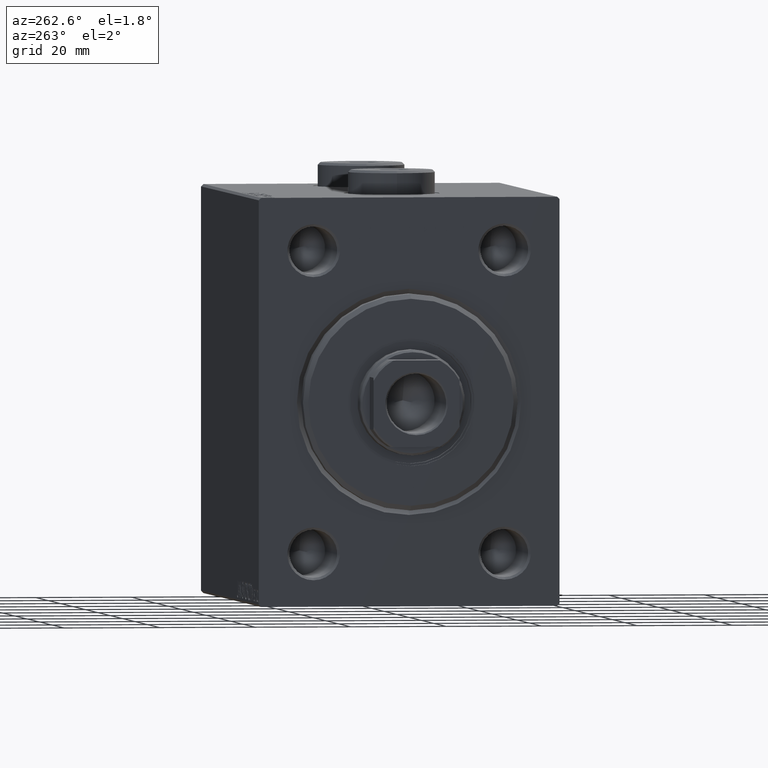
[diagram: clean part render]
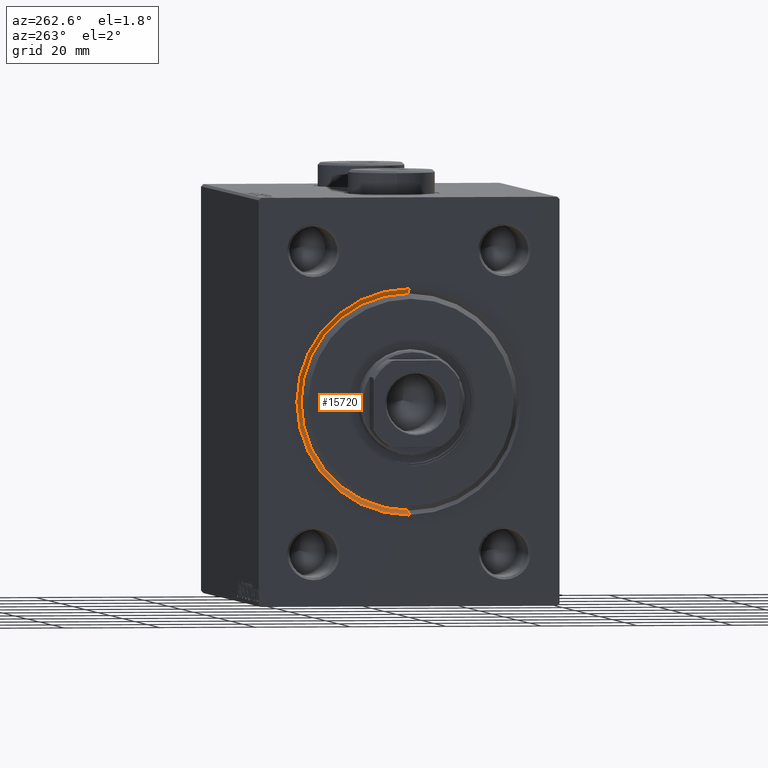
[diagram: same view with one face highlighted and labeled with its STEP entity id]
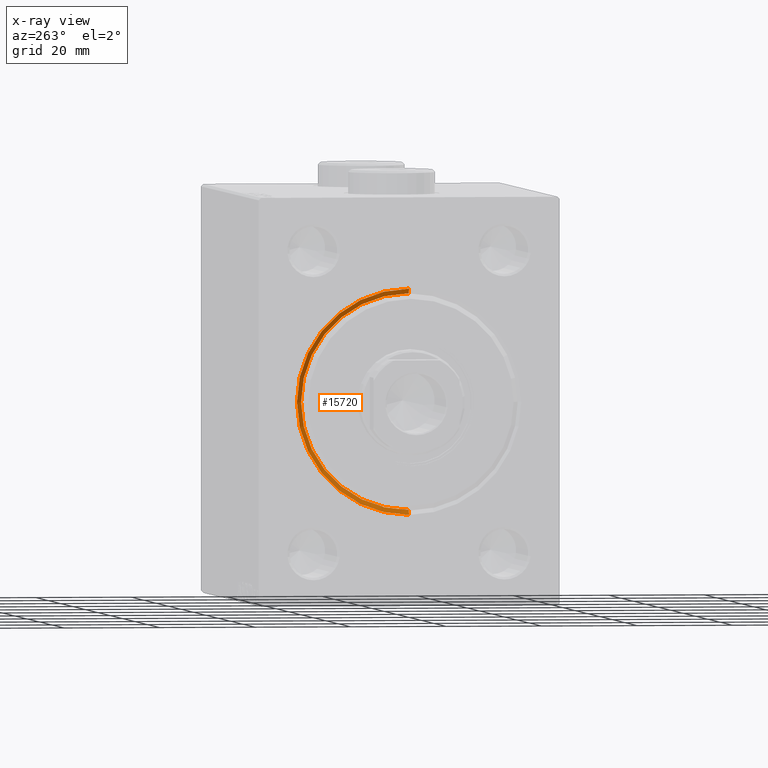
[diagram: x-ray of the same camera — body ghosted, the highlighted face saturated]
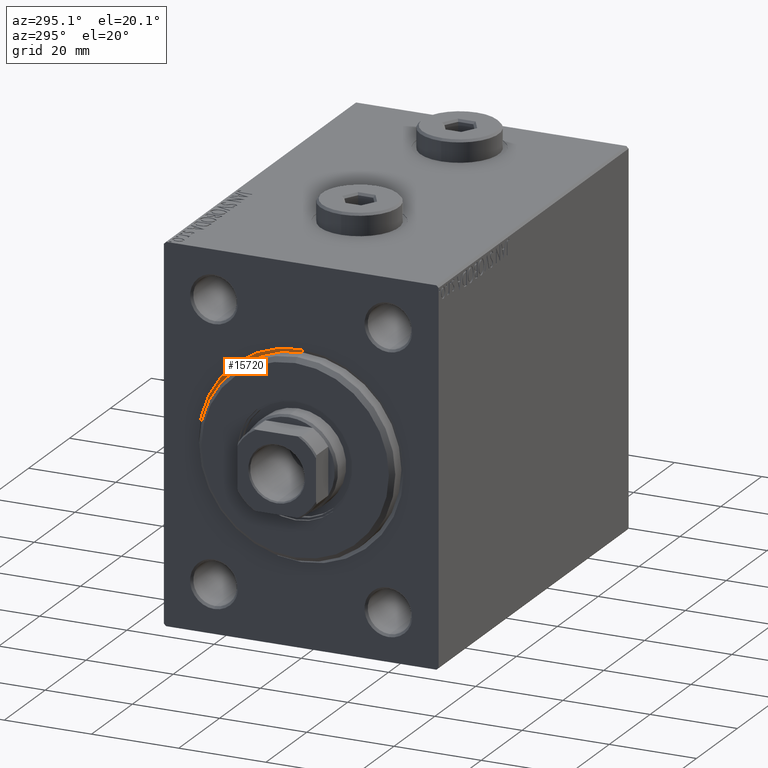
[diagram: same view with one face highlighted and labeled with its STEP entity id]
A machine part, auxiliary view. The second image highlights one B-rep face of the part: STEP entity #15720.
The next image is the same camera in x-ray: the body ghosted, the highlighted face saturated — about 0% of this face is hidden behind the body in this view.
A second angle (auxiliary view) of the same face is appended — the face is thin or edge-on in the first view.
In plain terms, the highlighted conical surface has half-angle 45 deg.
Its self-contained STEP definition (entity closure, byte-faithful):
#7 = LINE ( 'NONE', #31123, #21887 ) ;
#1227 = CARTESIAN_POINT ( 'NONE',  ( 1.000000000000014655, 2.755455298081545172E-15, -22.50000000000000355 ) ) ;
#1857 = LINE ( 'NONE', #37563, #29921 ) ;
#1913 = VERTEX_POINT ( 'NONE', #35775 ) ;
#2053 = CARTESIAN_POINT ( 'NONE',  ( 1.000000000000014655, 0.000000000000000000, 22.50000000000000355 ) ) ;
#3196 = EDGE_CURVE ( 'NONE', #10837, #1913, #1857, .T. ) ;
#5368 = AXIS2_PLACEMENT_3D ( 'NONE', #7008, #13246, #45266 ) ;
#6170 = CARTESIAN_POINT ( 'NONE',  ( 1.000000000000014655, 0.000000000000000000, 0.000000000000000000 ) ) ;
#7008 = CARTESIAN_POINT ( 'NONE',  ( 1.000000000000014655, 0.000000000000000000, 0.000000000000000000 ) ) ;
#7553 = CONICAL_SURFACE ( 'NONE', #5368, 22.50000000000000355, 0.7853981633974482790 ) ;
#8808 = EDGE_CURVE ( 'NONE', #19861, #15130, #7, .T. ) ;
#10837 = VERTEX_POINT ( 'NONE', #1227 ) ;
#12417 = DIRECTION ( 'NONE',  ( -1.000000000000000000, 0.000000000000000000, 0.000000000000000000 ) ) ;
#13065 = AXIS2_PLACEMENT_3D ( 'NONE', #17439, #18114, #31503 ) ;
#13246 = DIRECTION ( 'NONE',  ( -1.000000000000000000, 0.000000000000000000, 0.000000000000000000 ) ) ;
#15130 = VERTEX_POINT ( 'NONE', #43379 ) ;
#15416 = EDGE_CURVE ( 'NONE', #19861, #10837, #32539, .T. ) ;
#15720 = ADVANCED_FACE ( 'NONE', ( #34208 ), #7553, .F. ) ;
#16665 = ORIENTED_EDGE ( 'NONE', *, *, #38076, .F. ) ;
#17439 = CARTESIAN_POINT ( 'NONE',  ( 0.000000000000000000, 0.000000000000000000, 0.000000000000000000 ) ) ;
#18114 = DIRECTION ( 'NONE',  ( 1.000000000000000000, 0.000000000000000000, 0.000000000000000000 ) ) ;
#19861 = VERTEX_POINT ( 'NONE', #2053 ) ;
#21887 = VECTOR ( 'NONE', #31571, 1000.000000000000114 ) ;
#22706 = ORIENTED_EDGE ( 'NONE', *, *, #15416, .F. ) ;
#26919 = DIRECTION ( 'NONE',  ( 0.000000000000000000, 0.000000000000000000, -1.000000000000000000 ) ) ;
#29921 = VECTOR ( 'NONE', #29977, 1000.000000000000114 ) ;
#29977 = DIRECTION ( 'NONE',  ( -0.7071067811865474617, 8.659560562354932858E-17, -0.7071067811865474617 ) ) ;
#31123 = CARTESIAN_POINT ( 'NONE',  ( 1.000000000000014655, 0.000000000000000000, 22.50000000000000355 ) ) ;
#31503 = DIRECTION ( 'NONE',  ( 0.000000000000000000, 0.000000000000000000, -1.000000000000000000 ) ) ;
#31571 = DIRECTION ( 'NONE',  ( -0.7071067811865474617, 0.000000000000000000, 0.7071067811865474617 ) ) ;
#32539 = CIRCLE ( 'NONE', #37689, 22.50000000000000355 ) ;
#34208 = FACE_OUTER_BOUND ( 'NONE', #42017, .T. ) ;
#35775 = CARTESIAN_POINT ( 'NONE',  ( 0.000000000000000000, 2.877919977996282293E-15, -23.50000000000001776 ) ) ;
#36990 = ORIENTED_EDGE ( 'NONE', *, *, #8808, .T. ) ;
#37563 = CARTESIAN_POINT ( 'NONE',  ( 1.000000000000014655, 2.755455298081545172E-15, -22.50000000000000355 ) ) ;
#37689 = AXIS2_PLACEMENT_3D ( 'NONE', #6170, #12417, #26919 ) ;
#38076 = EDGE_CURVE ( 'NONE', #1913, #15130, #41077, .T. ) ;
#38538 = ORIENTED_EDGE ( 'NONE', *, *, #3196, .F. ) ;
#41077 = CIRCLE ( 'NONE', #13065, 23.50000000000001776 ) ;
#42017 = EDGE_LOOP ( 'NONE', ( #38538, #22706, #36990, #16665 ) ) ;
#43379 = CARTESIAN_POINT ( 'NONE',  ( 0.000000000000000000, 0.000000000000000000, 23.50000000000001776 ) ) ;
#45266 = DIRECTION ( 'NONE',  ( 0.000000000000000000, 0.000000000000000000, 1.000000000000000000 ) ) ;